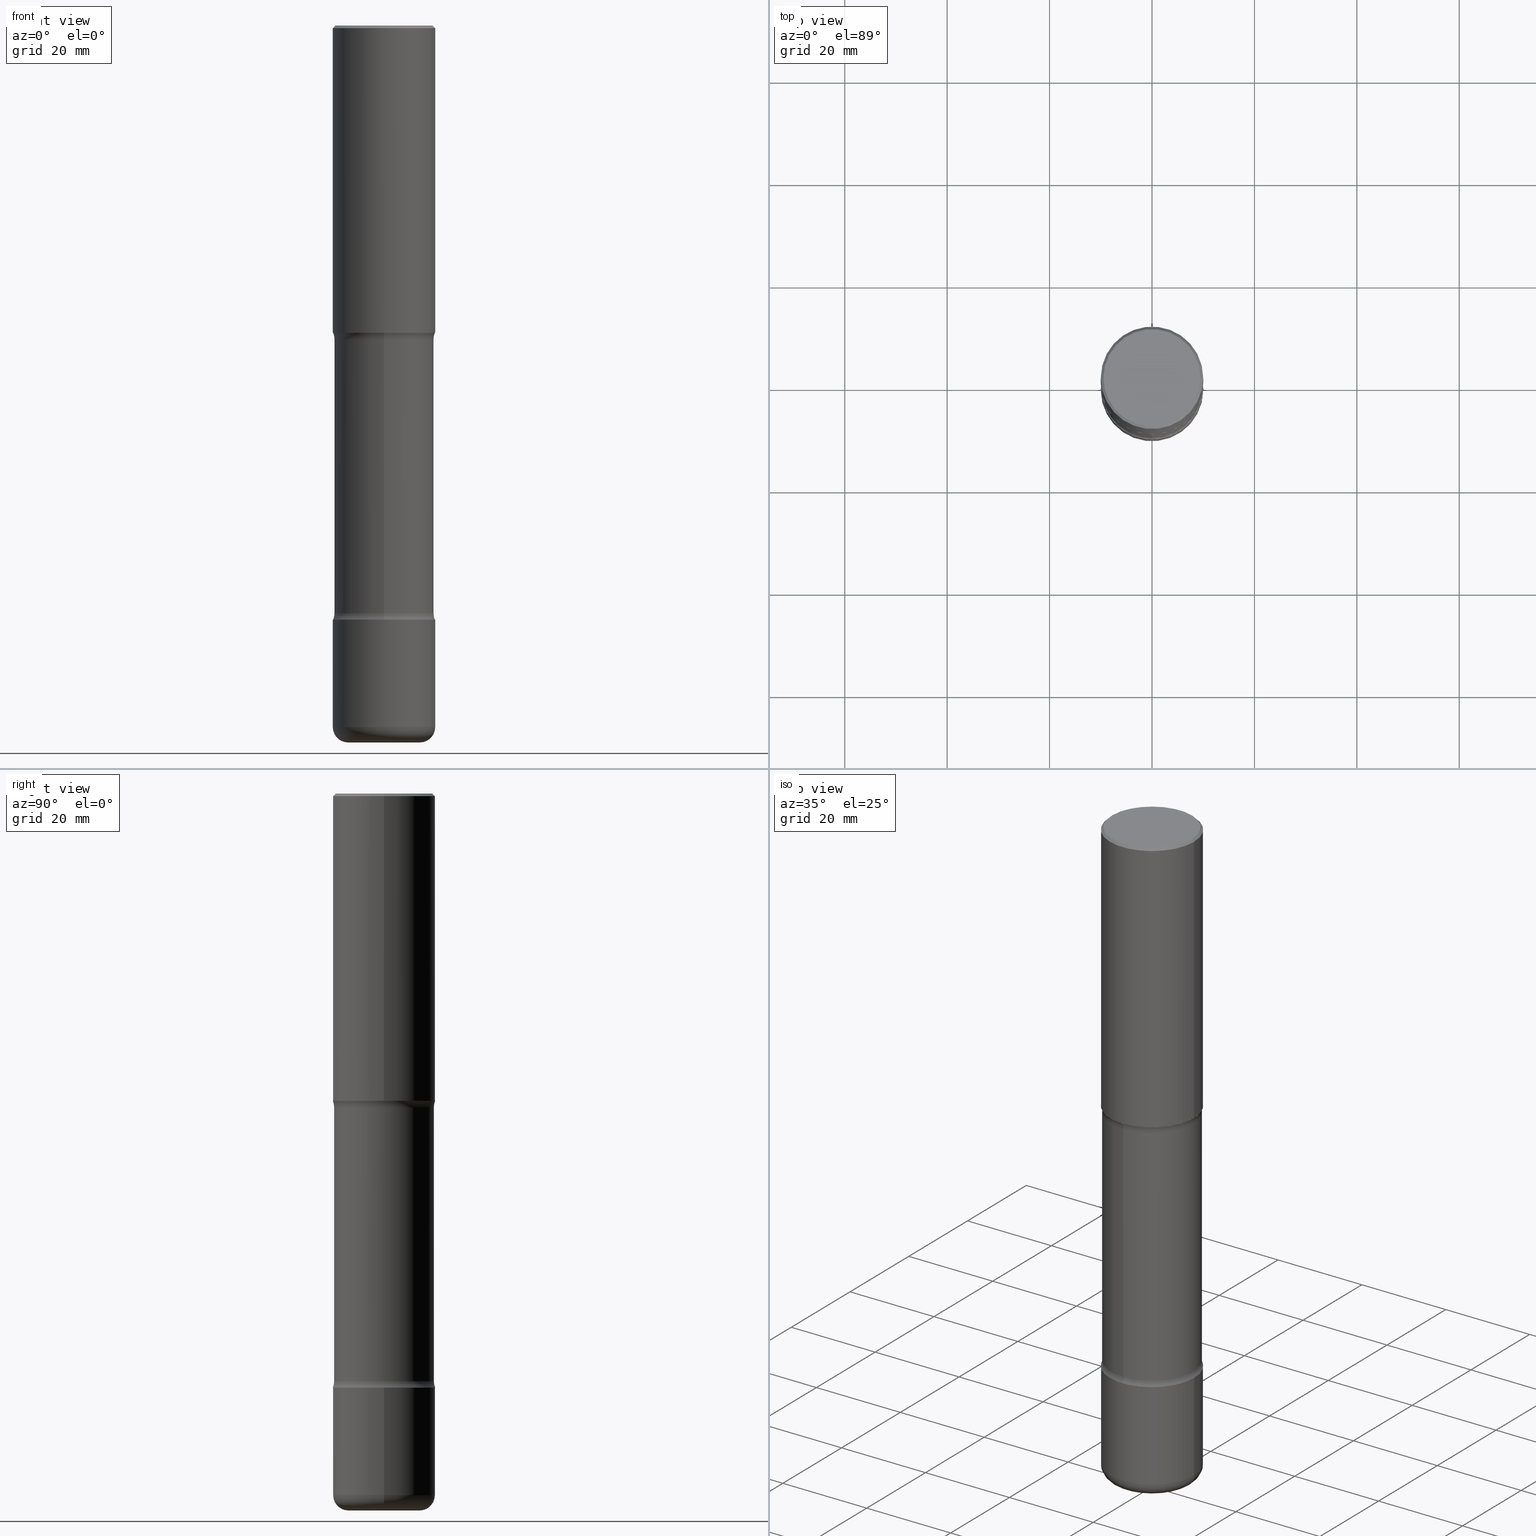
[diagram: canonical four-view strip — front | top / right | iso, engineering-drawing reading convention]
A machine part, canonical four-view strip (front | top / right | iso — engineering-drawing reading convention). The complete STEP part file that produces these views, byte-faithful:
ISO-10303-21;
HEADER;
FILE_DESCRIPTION (( 'STEP AP203' ),
    '1' );
FILE_NAME ('46941.STEP',
    '2024-03-02T06:07:45',
    ( '' ),
    ( '' ),
    'SwSTEP 2.0',
    'SolidWorks 2023',
    '' );
FILE_SCHEMA (( 'CONFIG_CONTROL_DESIGN' ));
ENDSEC;

DATA;
#1 = ORIENTED_EDGE ( 'NONE', *, *, #70, .T. ) ;
#2 = ADVANCED_BREP_SHAPE_REPRESENTATION ( '46941', ( #542, #544, #349, #174 ), #419 ) ;
#3 = CARTESIAN_POINT ( 'NONE',  ( -0.3937000000000002720, -1.361296672008554112E-15, -2.362200000000000077 ) ) ;
#4 = EDGE_CURVE ( 'NONE', #523, #367, #243, .T. ) ;
#5 = VERTEX_POINT ( 'NONE', #516 ) ;
#6 = AXIS2_PLACEMENT_3D ( 'NONE', #218, #395, #339 ) ;
#7 = AXIS2_PLACEMENT_3D ( 'NONE', #377, #38, #343 ) ;
#8 = APPROVAL_ROLE ( '' ) ;
#9 = ORIENTED_EDGE ( 'NONE', *, *, #188, .T. ) ;
#10 = DATE_AND_TIME ( #60, #474 ) ;
#11 = DIRECTION ( 'NONE',  ( 2.540811743831259279E-29, -3.354944825550891508E-15, -1.000000000000000000 ) ) ;
#12 = ORIENTED_EDGE ( 'NONE', *, *, #76, .F. ) ;
#13 = PERSON_AND_ORGANIZATION_ROLE ( 'design_owner' ) ;
#14 = CARTESIAN_POINT ( 'NONE',  ( 5.776686413970530874E-29, -8.247577218615279626E-15, -2.362200000000000077 ) ) ;
#15 = AXIS2_PLACEMENT_3D ( 'NONE', #550, #375, #24 ) ;
#16 = ADVANCED_FACE ( 'NONE', ( #344 ), #257, .F. ) ;
#17 = FACE_OUTER_BOUND ( 'NONE', #119, .T. ) ;
#18 = CARTESIAN_POINT ( 'NONE',  ( 0.000000000000000000, 0.000000000000000000, 0.000000000000000000 ) ) ;
#19 = PLANE ( 'NONE',  #547 ) ;
#20 = CC_DESIGN_DATE_AND_TIME_ASSIGNMENT ( #309, #96, ( #62 ) ) ;
#21 = AXIS2_PLACEMENT_3D ( 'NONE', #525, #493, #484 ) ;
#22 = DIRECTION ( 'NONE',  ( -2.445468806185136597E-29, 3.491481338843145583E-15, 1.000000000000000000 ) ) ;
#23 = PLANE ( 'NONE',  #147 ) ;
#24 = DIRECTION ( 'NONE',  ( 1.000000000000000000, -6.982962677686266711E-15, 0.000000000000000000 ) ) ;
#25 = CARTESIAN_POINT ( 'NONE',  ( 0.3937000000000001054, -2.749192406205084005E-15, 1.919750796630860452E-29 ) ) ;
#26 = ORIENTED_EDGE ( 'NONE', *, *, #459, .F. ) ;
#27 = ADVANCED_FACE ( 'NONE', ( #66 ), #317, .T. ) ;
#28 = CLOSED_SHELL ( 'NONE', ( #323, #234, #436, #199, #87, #128 ) ) ;
#29 = TOROIDAL_SURFACE ( 'NONE', #108, 0.5085000000000002851, 0.1250000000000000278 ) ;
#30 = CYLINDRICAL_SURFACE ( 'NONE', #499, 0.3937000000000001054 ) ;
#31 = CARTESIAN_POINT ( 'NONE',  ( 0.3736999999999999766, -2.667287895133368359E-15, 8.537024980219259100E-18 ) ) ;
#32 = CARTESIAN_POINT ( 'NONE',  ( 0.000000000000000000, 0.000000000000000000, 0.000000000000000000 ) ) ;
#33 = EDGE_LOOP ( 'NONE', ( #35, #86 ) ) ;
#34 = DIRECTION ( 'NONE',  ( 6.860497997771532351E-15, 1.000000000000000000, 0.000000000000000000 ) ) ;
#35 = ORIENTED_EDGE ( 'NONE', *, *, #56, .F. ) ;
#36 = EDGE_CURVE ( 'NONE', #458, #201, #227, .T. ) ;
#37 = APPLICATION_CONTEXT ( 'configuration controlled 3d designs of mechanical parts and assemblies' ) ;
#38 = DIRECTION ( 'NONE',  ( 7.105427357601001859E-15, 1.000000000000000000, -3.491481338843145583E-15 ) ) ;
#39 = ORIENTED_EDGE ( 'NONE', *, *, #258, .F. ) ;
#40 = CIRCLE ( 'NONE', #445, 0.3937000000000003830 ) ;
#41 =( NAMED_UNIT ( * ) SI_UNIT ( $, .STERADIAN. ) SOLID_ANGLE_UNIT ( ) );
#42 = CARTESIAN_POINT ( 'NONE',  ( 0.3937000000000000499, -2.770807688499515734E-15, -0.02000000000000008715 ) ) ;
#43 = ORIENTED_EDGE ( 'NONE', *, *, #150, .T. ) ;
#44 = LENGTH_MEASURE_WITH_UNIT ( LENGTH_MEASURE( 0.02539999999999999897 ), #80 );
#45 = CARTESIAN_POINT ( 'NONE',  ( 2.609533152651357409E-15, 0.3736999999999999766, -1.300498063835583011E-15 ) ) ;
#46 = DIRECTION ( 'NONE',  ( 1.000000000000000000, -6.860497997771530774E-15, 4.842470969663844004E-29 ) ) ;
#47 = EDGE_CURVE ( 'NONE', #389, #89, #425, .T. ) ;
#48 = DIRECTION ( 'NONE',  ( 1.000000000000000000, -6.982962677686269077E-15, 4.883557194083114022E-29 ) ) ;
#49 = EDGE_LOOP ( 'NONE', ( #398, #471, #455, #285 ) ) ;
#50 = PERSON ( 'UNSPECIFIED', 'UNSPECIFIED', 'UNSPECIFIED', ('UNSPECIFIED'), ('UNSPECIFIED'), ('UNSPECIFIED') ) ;
#51 = TOROIDAL_SURFACE ( 'NONE', #314, 0.2756000000000004557, 0.1180999999999994832 ) ;
#52 = DIRECTION ( 'NONE',  ( 0.000000000000000000, 0.000000000000000000, 1.000000000000000000 ) ) ;
#53 = DIRECTION ( 'NONE',  ( 6.982962677686265133E-15, 1.000000000000000000, -3.354944825550891508E-15 ) ) ;
#54 = VERTEX_POINT ( 'NONE', #540 ) ;
#55 = CYLINDRICAL_SURFACE ( 'NONE', #261, 0.3937000000000004385 ) ;
#56 = EDGE_CURVE ( 'NONE', #54, #203, #332, .T. ) ;
#57 = CARTESIAN_POINT ( 'NONE',  ( 0.2756000000000004557, -2.075650741128861749E-14, -5.393700000000000827 ) ) ;
#58 = CIRCLE ( 'NONE', #15, 0.3937000000000002164 ) ;
#59 = AXIS2_PLACEMENT_3D ( 'NONE', #265, #224, #103 ) ;
#60 = CALENDAR_DATE ( 2024, 2, 3 ) ;
#61 = CARTESIAN_POINT ( 'NONE',  ( 4.890937612370294178E-31, -6.982962677686321191E-17, -0.02000000000000008715 ) ) ;
#62 = PRODUCT_DEFINITION ( 'UNKNOWN', '', #185, #530 ) ;
#63 = CARTESIAN_POINT ( 'NONE',  ( 1.116821149096690103E-28, -1.594524612636276117E-14, -4.566900000000000404 ) ) ;
#64 = DIRECTION ( 'NONE',  ( 1.000000000000000000, -6.982962677686269866E-15, 0.000000000000000000 ) ) ;
#65 = TOROIDAL_SURFACE ( 'NONE', #73, 0.5085000000000001741, 0.1249999999999999584 ) ;
#66 = FACE_OUTER_BOUND ( 'NONE', #347, .T. ) ;
#67 = CARTESIAN_POINT ( 'NONE',  ( 1.104255145972444542E-28, -1.577932180213095535E-14, -4.517443352317408234 ) ) ;
#68 = DIRECTION ( 'NONE',  ( -2.445468806185136877E-29, 3.491481338843145188E-15, 1.000000000000000000 ) ) ;
#69 = VERTEX_POINT ( 'NONE', #468 ) ;
#70 = EDGE_CURVE ( 'NONE', #510, #5, #145, .T. ) ;
#71 = ORIENTED_EDGE ( 'NONE', *, *, #376, .T. ) ;
#72 = AXIS2_PLACEMENT_3D ( 'NONE', #45, #125, #521 ) ;
#73 = AXIS2_PLACEMENT_3D ( 'NONE', #140, #480, #53 ) ;
#74 = CARTESIAN_POINT ( 'NONE',  ( 0.3937000000000002164, -2.158119530352336260E-14, -5.393700000000000827 ) ) ;
#75 = EDGE_LOOP ( 'NONE', ( #526, #209 ) ) ;
#76 = EDGE_CURVE ( 'NONE', #5, #378, #320, .T. ) ;
#77 = DIRECTION ( 'NONE',  ( 1.000000000000000000, -6.982962677686269077E-15, 4.883557194083114022E-29 ) ) ;
#78 = CARTESIAN_POINT ( 'NONE',  ( -3.488563231866767784E-15, -0.5085000000000089448, -2.411656647682590915 ) ) ;
#79 = EDGE_LOOP ( 'NONE', ( #431, #26, #290, #259 ) ) ;
#80 =( LENGTH_UNIT ( ) NAMED_UNIT ( * ) SI_UNIT ( $, .METRE. ) );
#81 = FACE_OUTER_BOUND ( 'NONE', #460, .T. ) ;
#82 = VECTOR ( 'NONE', #373, 39.37007874015748143 ) ;
#83 = ORIENTED_EDGE ( 'NONE', *, *, #70, .F. ) ;
#84 = AXIS2_PLACEMENT_3D ( 'NONE', #148, #186, #231 ) ;
#85 = DIRECTION ( 'NONE',  ( -2.445468806185136877E-29, 3.491481338843145188E-15, 1.000000000000000000 ) ) ;
#86 = ORIENTED_EDGE ( 'NONE', *, *, #188, .F. ) ;
#87 = ADVANCED_FACE ( 'NONE', ( #359 ), #123, .T. ) ;
#88 = CARTESIAN_POINT ( 'NONE',  ( 1.319012509992077371E-28, -1.883200289731827938E-14, -5.393700000000000827 ) ) ;
#89 = VERTEX_POINT ( 'NONE', #454 ) ;
#90 = COORDINATED_UNIVERSAL_TIME_OFFSET ( 5, 0, .BEHIND. ) ;
#91 = FACE_OUTER_BOUND ( 'NONE', #79, .T. ) ;
#92 = ORIENTED_EDGE ( 'NONE', *, *, #177, .T. ) ;
#93 = CC_DESIGN_DATE_AND_TIME_ASSIGNMENT ( #10, #306, ( #263 ) ) ;
#94 = DIRECTION ( 'NONE',  ( -2.445468806185136597E-29, 3.491481338843145583E-15, 1.000000000000000000 ) ) ;
#95 = CARTESIAN_POINT ( 'NONE',  ( 1.319012509992077371E-28, -1.883200289731827938E-14, -5.393700000000000827 ) ) ;
#96 = DATE_TIME_ROLE ( 'creation_date' ) ;
#97 = CARTESIAN_POINT ( 'NONE',  ( 1.347893496593123646E-28, -1.924434684343564878E-14, -5.511800000000000033 ) ) ;
#98 = ADVANCED_FACE ( 'NONE', ( #410 ), #413, .T. ) ;
#99 = AXIS2_PLACEMENT_3D ( 'NONE', #217, #122, #520 ) ;
#100 = CIRCLE ( 'NONE', #236, 0.2756000000000004557 ) ;
#101 = SHAPE_DEFINITION_REPRESENTATION ( #383, #2 ) ;
#102 = ORIENTED_EDGE ( 'NONE', *, *, #522, .F. ) ;
#103 = DIRECTION ( 'NONE',  ( 1.000000000000000000, -6.982962677686269866E-15, 0.000000000000000000 ) ) ;
#104 = DIMENSIONAL_EXPONENTS ( 1.000000000000000000, 0.000000000000000000, 0.000000000000000000, 0.000000000000000000, 0.000000000000000000, 0.000000000000000000, 0.000000000000000000 ) ;
#105 = DIRECTION ( 'NONE',  ( -2.445468806185136597E-29, 3.491481338843145583E-15, 1.000000000000000000 ) ) ;
#106 = CARTESIAN_POINT ( 'NONE',  ( 5.566483839342124878E-29, -8.548599269470712439E-15, -2.362200000000000077 ) ) ;
#107 = CARTESIAN_POINT ( 'NONE',  ( 0.000000000000000000, 0.000000000000000000, 0.000000000000000000 ) ) ;
#108 = AXIS2_PLACEMENT_3D ( 'NONE', #151, #501, #416 ) ;
#109 = ORGANIZATION ( 'UNSPECIFIED', 'UNSPECIFIED', '' ) ;
#110 = EDGE_CURVE ( 'NONE', #214, #378, #517, .T. ) ;
#111 = CARTESIAN_POINT ( 'NONE',  ( 5.706867177328101734E-29, -8.693438980447217573E-15, -2.411656647682592691 ) ) ;
#112 = VERTEX_POINT ( 'NONE', #74 ) ;
#113 = ORIENTED_EDGE ( 'NONE', *, *, #333, .F. ) ;
#114 = DIRECTION ( 'NONE',  ( 6.982962677686265922E-15, 1.000000000000000000, -3.469453890861391234E-15 ) ) ;
#115 = ORIENTED_EDGE ( 'NONE', *, *, #533, .F. ) ;
#116 = CC_DESIGN_PERSON_AND_ORGANIZATION_ASSIGNMENT ( #230, #360, ( #62 ) ) ;
#117 = PLANE ( 'NONE',  #280 ) ;
#118 = ORIENTED_EDGE ( 'NONE', *, *, #56, .T. ) ;
#119 = EDGE_LOOP ( 'NONE', ( #382, #424 ) ) ;
#120 = DIRECTION ( 'NONE',  ( 1.000000000000000000, -6.982962677686265922E-15, 0.000000000000000000 ) ) ;
#121 = ORIENTED_EDGE ( 'NONE', *, *, #36, .F. ) ;
#122 = DIRECTION ( 'NONE',  ( 2.445468806185136597E-29, -3.491481338843145583E-15, -1.000000000000000000 ) ) ;
#123 = CYLINDRICAL_SURFACE ( 'NONE', #184, 0.3937000000000004385 ) ;
#124 = AXIS2_PLACEMENT_3D ( 'NONE', #106, #420, #329 ) ;
#125 = DIRECTION ( 'NONE',  ( 2.438088387897960049E-29, -3.491481338843145188E-15, -1.000000000000000000 ) ) ;
#126 = EDGE_CURVE ( 'NONE', #112, #89, #552, .T. ) ;
#127 =( NAMED_UNIT ( * ) PLANE_ANGLE_UNIT ( ) SI_UNIT ( $, .RADIAN. ) );
#128 = ADVANCED_FACE ( 'NONE', ( #149 ), #117, .F. ) ;
#129 = FACE_OUTER_BOUND ( 'NONE', #180, .T. ) ;
#130 = VERTEX_POINT ( 'NONE', #246 ) ;
#131 = COORDINATED_UNIVERSAL_TIME_OFFSET ( 5, 0, .BEHIND. ) ;
#132 = ORIENTED_EDGE ( 'NONE', *, *, #229, .F. ) ;
#133 = ADVANCED_FACE ( 'NONE', ( #156 ), #30, .T. ) ;
#134 = APPROVAL_STATUS ( 'not_yet_approved' ) ;
#135 = DIRECTION ( 'NONE',  ( -2.445468806185136597E-29, 3.491481338843145583E-15, 1.000000000000000000 ) ) ;
#136 = AXIS2_PLACEMENT_3D ( 'NONE', #327, #503, #114 ) ;
#137 = CIRCLE ( 'NONE', #299, 0.3937000000000003830 ) ;
#138 = DIRECTION ( 'NONE',  ( -2.445468806185136597E-29, 3.491481338843145583E-15, 1.000000000000000000 ) ) ;
#139 = APPROVAL_STATUS ( 'not_yet_approved' ) ;
#140 = CARTESIAN_POINT ( 'NONE',  ( 1.104726680180063437E-28, -1.577256916389725054E-14, -4.517443352317408234 ) ) ;
#141 = APPROVAL_DATE_TIME ( #269, #479 ) ;
#142 = VERTEX_POINT ( 'NONE', #453 ) ;
#143 = DIRECTION ( 'NONE',  ( -2.445468806185136597E-29, 3.491481338843145583E-15, 1.000000000000000000 ) ) ;
#144 = EDGE_CURVE ( 'NONE', #130, #256, #154, .T. ) ;
#145 = CIRCLE ( 'NONE', #207, 0.3937000000000003830 ) ;
#146 = VECTOR ( 'NONE', #515, 39.37007874015748143 ) ;
#147 = AXIS2_PLACEMENT_3D ( 'NONE', #456, #415, #198 ) ;
#148 = CARTESIAN_POINT ( 'NONE',  ( 4.890937612370294178E-31, -6.982962677686321191E-17, -0.02000000000000008715 ) ) ;
#149 = FACE_OUTER_BOUND ( 'NONE', #288, .T. ) ;
#150 = EDGE_CURVE ( 'NONE', #502, #130, #58, .T. ) ;
#151 = CARTESIAN_POINT ( 'NONE',  ( 5.706867177328101734E-29, -8.693438980447217573E-15, -2.411656647682592691 ) ) ;
#152 = ORIENTED_EDGE ( 'NONE', *, *, #291, .T. ) ;
#153 = VECTOR ( 'NONE', #294, 39.37007874015748143 ) ;
#154 = LINE ( 'NONE', #25, #253 ) ;
#155 = EDGE_LOOP ( 'NONE', ( #102, #43, #164, #113 ) ) ;
#156 = FACE_OUTER_BOUND ( 'NONE', #155, .T. ) ;
#157 = EDGE_LOOP ( 'NONE', ( #132, #312, #212, #370 ) ) ;
#158 = ADVANCED_FACE ( 'NONE', ( #159 ), #527, .F. ) ;
#159 = FACE_OUTER_BOUND ( 'NONE', #166, .T. ) ;
#160 = ORIENTED_EDGE ( 'NONE', *, *, #399, .T. ) ;
#161 = AXIS2_PLACEMENT_3D ( 'NONE', #422, #464, #193 ) ;
#162 = VECTOR ( 'NONE', #85, 39.37007874015748143 ) ;
#163 = CARTESIAN_POINT ( 'NONE',  ( -0.3937000000000000499, 2.679362779428219918E-15, -0.02000000000000008715 ) ) ;
#164 = ORIENTED_EDGE ( 'NONE', *, *, #144, .T. ) ;
#165 = DIRECTION ( 'NONE',  ( 1.000000000000000000, -6.982962677686269077E-15, 0.000000000000000000 ) ) ;
#166 = EDGE_LOOP ( 'NONE', ( #335, #295, #160, #118 ) ) ;
#167 = CARTESIAN_POINT ( 'NONE',  ( 1.347893496593123646E-28, -1.924434684343564878E-14, -5.511800000000000033 ) ) ;
#168 = ADVANCED_FACE ( 'NONE', ( #366 ), #29, .F. ) ;
#169 = DIRECTION ( 'NONE',  ( 6.982962677686265133E-15, 1.000000000000000000, -3.354944825550891508E-15 ) ) ;
#170 = VERTEX_POINT ( 'NONE', #196 ) ;
#171 = DIRECTION ( 'NONE',  ( 6.860497997771532351E-15, 1.000000000000000000, 0.000000000000000000 ) ) ;
#172 = AXIS2_PLACEMENT_3D ( 'NONE', #509, #513, #169 ) ;
#173 = EDGE_LOOP ( 'NONE', ( #292, #553, #176, #467 ) ) ;
#174 = AXIS2_PLACEMENT_3D ( 'NONE', #18, #52, #396 ) ;
#175 = PERSON_AND_ORGANIZATION_ROLE ( 'classification_officer' ) ;
#176 = ORIENTED_EDGE ( 'NONE', *, *, #430, .T. ) ;
#177 = EDGE_CURVE ( 'NONE', #201, #250, #324, .T. ) ;
#178 = COORDINATED_UNIVERSAL_TIME_OFFSET ( 5, 0, .BEHIND. ) ;
#179 = CARTESIAN_POINT ( 'NONE',  ( 0.000000000000000000, 0.000000000000000000, 0.000000000000000000 ) ) ;
#180 = EDGE_LOOP ( 'NONE', ( #560, #1 ) ) ;
#181 = PERSON_AND_ORGANIZATION ( #50, #109 ) ;
#182 = UNCERTAINTY_MEASURE_WITH_UNIT (LENGTH_MEASURE( 1.000000000000000082E-05 ), #519, 'distance_accuracy_value', 'NONE');
#183 = DIRECTION ( 'NONE',  ( 1.000000000000000000, -6.982962677686265922E-15, 0.000000000000000000 ) ) ;
#184 = AXIS2_PLACEMENT_3D ( 'NONE', #107, #22, #202 ) ;
#185 = PRODUCT_DEFINITION_FORMATION_WITH_SPECIFIED_SOURCE ( 'ANY', '', #296, .NOT_KNOWN. ) ;
#186 = DIRECTION ( 'NONE',  ( 2.445468806185136597E-29, -3.491481338843145583E-15, -1.000000000000000000 ) ) ;
#187 = CALENDAR_DATE ( 2024, 2, 3 ) ;
#188 = EDGE_CURVE ( 'NONE', #203, #54, #482, .T. ) ;
#189 = DIRECTION ( 'NONE',  ( 1.000000000000000000, -6.982962677686261977E-15, 0.000000000000000000 ) ) ;
#190 = FACE_OUTER_BOUND ( 'NONE', #491, .T. ) ;
#191 = CIRCLE ( 'NONE', #244, 0.1250000000000000278 ) ;
#192 = AXIS2_PLACEMENT_3D ( 'NONE', #363, #358, #275 ) ;
#193 = DIRECTION ( 'NONE',  ( 6.982962677686265133E-15, 1.000000000000000000, -2.849385130288669478E-15 ) ) ;
#194 = CC_DESIGN_PERSON_AND_ORGANIZATION_ASSIGNMENT ( #442, #175, ( #263 ) ) ;
#195 = DIRECTION ( 'NONE',  ( -2.445468806185136877E-29, 3.491481338843145188E-15, 1.000000000000000000 ) ) ;
#196 = CARTESIAN_POINT ( 'NONE',  ( -0.3937000000000002164, -1.603459614663076223E-14, -5.393700000000000827 ) ) ;
#197 = APPROVAL_PERSON_ORGANIZATION ( #490, #557, #220 ) ;
#198 = DIRECTION ( 'NONE',  ( 1.000000000000000000, -6.982962677686265922E-15, 4.876176775795935793E-29 ) ) ;
#199 = ADVANCED_FACE ( 'NONE', ( #381 ), #51, .T. ) ;
#200 = DIRECTION ( 'NONE',  ( 1.000000000000000000, -6.982962677686266711E-15, 4.876176775795935793E-29 ) ) ;
#201 = VERTEX_POINT ( 'NONE', #428 ) ;
#202 = DIRECTION ( 'NONE',  ( 1.000000000000000000, -6.982962677686266711E-15, 4.876176775795935793E-29 ) ) ;
#203 = VERTEX_POINT ( 'NONE', #249 ) ;
#204 = CARTESIAN_POINT ( 'NONE',  ( -3.488563231866713353E-15, -0.5085000000000159392, -4.517443352317406458 ) ) ;
#205 = LINE ( 'NONE', #470, #146 ) ;
#206 = DIRECTION ( 'NONE',  ( -1.000000000000000000, 6.982962677686265922E-15, -4.883557194083112901E-29 ) ) ;
#207 = AXIS2_PLACEMENT_3D ( 'NONE', #63, #449, #278 ) ;
#208 = AXIS2_PLACEMENT_3D ( 'NONE', #57, #226, #403 ) ;
#209 = ORIENTED_EDGE ( 'NONE', *, *, #150, .F. ) ;
#210 = EDGE_CURVE ( 'NONE', #142, #203, #191, .T. ) ;
#211 = CARTESIAN_POINT ( 'NONE',  ( -2.631000982145247058E-15, -0.3835000000000192699, -5.511799999999999145 ) ) ;
#212 = ORIENTED_EDGE ( 'NONE', *, *, #126, .T. ) ;
#213 = FACE_OUTER_BOUND ( 'NONE', #374, .T. ) ;
#214 = VERTEX_POINT ( 'NONE', #346 ) ;
#215 = CIRCLE ( 'NONE', #537, 0.3937000000000004940 ) ;
#216 = EDGE_CURVE ( 'NONE', #69, #378, #205, .T. ) ;
#217 = CARTESIAN_POINT ( 'NONE',  ( 4.890937612370294178E-31, -6.982962677686321191E-17, -0.02000000000000008715 ) ) ;
#218 = CARTESIAN_POINT ( 'NONE',  ( 1.347893496593123646E-28, -1.924434684343564878E-14, -5.511800000000000033 ) ) ;
#219 = VECTOR ( 'NONE', #427, 39.37007874015748143 ) ;
#220 = APPROVAL_ROLE ( '' ) ;
#221 = FACE_OUTER_BOUND ( 'NONE', #49, .T. ) ;
#222 = EDGE_LOOP ( 'NONE', ( #331, #478 ) ) ;
#223 = APPROVAL_DATE_TIME ( #405, #557 ) ;
#224 = DIRECTION ( 'NONE',  ( -2.445468806185136597E-29, 3.491481338843145583E-15, 1.000000000000000000 ) ) ;
#225 = APPROVAL_STATUS ( 'not_yet_approved' ) ;
#226 = DIRECTION ( 'NONE',  ( -6.982962677686266711E-15, -1.000000000000000000, 3.491481338843145583E-15 ) ) ;
#227 = CIRCLE ( 'NONE', #450, 0.3736999999999999766 ) ;
#228 = LOCAL_TIME ( 1, 7, 45.00000000000000000, #178 ) ;
#229 = EDGE_CURVE ( 'NONE', #170, #389, #337, .T. ) ;
#230 = PERSON_AND_ORGANIZATION ( #50, #109 ) ;
#231 = DIRECTION ( 'NONE',  ( -1.000000000000000000, 6.982962677686265922E-15, 0.000000000000000000 ) ) ;
#232 = APPLICATION_PROTOCOL_DEFINITION ( 'international standard', 'config_control_design', 1994, #330 ) ;
#233 = CARTESIAN_POINT ( 'NONE',  ( 0.2756000000000004557, -2.116885135740598689E-14, -5.511800000000000033 ) ) ;
#234 = ADVANCED_FACE ( 'NONE', ( #81 ), #473, .T. ) ;
#235 = CIRCLE ( 'NONE', #555, 0.3937000000000000499 ) ;
#236 = AXIS2_PLACEMENT_3D ( 'NONE', #167, #336, #165 ) ;
#237 = DIRECTION ( 'NONE',  ( -1.000000000000000000, 6.982962677686265922E-15, -4.876176775795935793E-29 ) ) ;
#238 = DIRECTION ( 'NONE',  ( 6.982962677686265133E-15, 1.000000000000000000, -2.849385130288669478E-15 ) ) ;
#239 = DIRECTION ( 'NONE',  ( 2.438088387897960049E-29, -3.491481338843145188E-15, -1.000000000000000000 ) ) ;
#240 = ORIENTED_EDGE ( 'NONE', *, *, #369, .F. ) ;
#241 = CARTESIAN_POINT ( 'NONE',  ( 1.116821149096690103E-28, -1.594524612636276117E-14, -4.566900000000000404 ) ) ;
#242 = CARTESIAN_POINT ( 'NONE',  ( -0.3937000000000000499, 2.679362779428219918E-15, -0.02000000000000008715 ) ) ;
#243 = CIRCLE ( 'NONE', #6, 0.2756000000000004557 ) ;
#244 = AXIS2_PLACEMENT_3D ( 'NONE', #78, #251, #34 ) ;
#245 = EDGE_CURVE ( 'NONE', #523, #170, #297, .T. ) ;
#246 = CARTESIAN_POINT ( 'NONE',  ( 0.3937000000000002164, -1.099676962482036442E-14, -2.362200000000000077 ) ) ;
#247 = ORIENTED_EDGE ( 'NONE', *, *, #488, .F. ) ;
#248 = LINE ( 'NONE', #469, #409 ) ;
#249 = CARTESIAN_POINT ( 'NONE',  ( -2.700978061722599187E-15, -0.3937000000000090982, -2.362199999999998745 ) ) ;
#250 = VERTEX_POINT ( 'NONE', #163 ) ;
#251 = DIRECTION ( 'NONE',  ( 1.000000000000000000, -6.860497997771530774E-15, 4.842470969663844004E-29 ) ) ;
#252 = ORIENTED_EDGE ( 'NONE', *, *, #245, .T. ) ;
#253 = VECTOR ( 'NONE', #195, 39.37007874015748143 ) ;
#254 = CC_DESIGN_APPROVAL ( #479, ( #185 ) ) ;
#255 = CARTESIAN_POINT ( 'NONE',  ( 1.319012509992077371E-28, -1.883200289731827938E-14, -5.393700000000000827 ) ) ;
#256 = VERTEX_POINT ( 'NONE', #42 ) ;
#257 = PLANE ( 'NONE',  #72 ) ;
#258 = EDGE_CURVE ( 'NONE', #378, #214, #271, .T. ) ;
#259 = ORIENTED_EDGE ( 'NONE', *, *, #258, .T. ) ;
#260 = APPROVAL_DATE_TIME ( #353, #421 ) ;
#261 = AXIS2_PLACEMENT_3D ( 'NONE', #179, #313, #444 ) ;
#262 = CARTESIAN_POINT ( 'NONE',  ( 5.692143870584579365E-29, -8.714523593702518262E-15, -2.411656647682592247 ) ) ;
#263 = SECURITY_CLASSIFICATION ( '', '', #524 ) ;
#264 = ORIENTED_EDGE ( 'NONE', *, *, #144, .F. ) ;
#265 = CARTESIAN_POINT ( 'NONE',  ( 1.319012509992077371E-28, -1.883200289731827938E-14, -5.393700000000000827 ) ) ;
#266 = APPROVAL_ROLE ( '' ) ;
#267 = DIRECTION ( 'NONE',  ( -2.445468806185136597E-29, 3.491481338843145583E-15, 1.000000000000000000 ) ) ;
#268 = ADVANCED_FACE ( 'NONE', ( #213 ), #341, .F. ) ;
#269 = DATE_AND_TIME ( #348, #321 ) ;
#270 = DIRECTION ( 'NONE',  ( 1.000000000000000000, -6.982962677686266711E-15, 4.876212485538975679E-29 ) ) ;
#271 = CIRCLE ( 'NONE', #443, 0.3835000000000001741 ) ;
#272 = CIRCLE ( 'NONE', #192, 0.1250000000000000278 ) ;
#273 = PERSON_AND_ORGANIZATION_ROLE ( 'design_supplier' ) ;
#274 = ORIENTED_EDGE ( 'NONE', *, *, #316, .T. ) ;
#275 = DIRECTION ( 'NONE',  ( -6.982962677686265133E-15, -1.000000000000000000, 0.000000000000000000 ) ) ;
#276 = DIRECTION ( 'NONE',  ( 1.000000000000000000, -6.982962677686261977E-15, 0.000000000000000000 ) ) ;
#277 = ADVANCED_FACE ( 'NONE', ( #559 ), #391, .T. ) ;
#278 = DIRECTION ( 'NONE',  ( 6.982962677686265133E-15, 1.000000000000000000, -2.775563112689113934E-15 ) ) ;
#279 = DIRECTION ( 'NONE',  ( -2.445468806185136597E-29, 3.491481338843145583E-15, 1.000000000000000000 ) ) ;
#280 = AXIS2_PLACEMENT_3D ( 'NONE', #318, #284, #287 ) ;
#281 = DIRECTION ( 'NONE',  ( -2.445468806185136597E-29, 3.491481338843145583E-15, 1.000000000000000000 ) ) ;
#282 = CARTESIAN_POINT ( 'NONE',  ( 0.3937000000000004385, -2.749192406205086372E-15, 1.919750796630862133E-29 ) ) ;
#283 = ORIENTED_EDGE ( 'NONE', *, *, #177, .F. ) ;
#284 = DIRECTION ( 'NONE',  ( 2.438088387897960049E-29, -3.491481338843145188E-15, -1.000000000000000000 ) ) ;
#285 = ORIENTED_EDGE ( 'NONE', *, *, #126, .F. ) ;
#286 = ADVANCED_FACE ( 'NONE', ( #129 ), #439, .F. ) ;
#287 = DIRECTION ( 'NONE',  ( -1.000000000000000000, 6.982962677686265922E-15, -4.876176775795935793E-29 ) ) ;
#288 = EDGE_LOOP ( 'NONE', ( #71, #514 ) ) ;
#289 = CIRCLE ( 'NONE', #364, 0.3835000000000002296 ) ;
#290 = ORIENTED_EDGE ( 'NONE', *, *, #76, .T. ) ;
#291 = EDGE_CURVE ( 'NONE', #130, #502, #418, .T. ) ;
#292 = ORIENTED_EDGE ( 'NONE', *, *, #245, .F. ) ;
#293 = DIRECTION ( 'NONE',  ( 2.540811743831259279E-29, -3.354944825550891508E-15, -1.000000000000000000 ) ) ;
#294 = DIRECTION ( 'NONE',  ( -2.445468806185136877E-29, 3.491481338843145188E-15, 1.000000000000000000 ) ) ;
#295 = ORIENTED_EDGE ( 'NONE', *, *, #316, .F. ) ;
#296 = PRODUCT ( '46941', '46941', '', ( #532 ) ) ;
#297 = CIRCLE ( 'NONE', #7, 0.1180999999999994832 ) ;
#298 = LINE ( 'NONE', #463, #162 ) ;
#299 = AXIS2_PLACEMENT_3D ( 'NONE', #558, #293, #380 ) ;
#300 = ORIENTED_EDGE ( 'NONE', *, *, #549, .F. ) ;
#301 = CARTESIAN_POINT ( 'NONE',  ( -0.2756000000000004557, -1.666034360515578958E-14, -5.511800000000000033 ) ) ;
#302 = ORIENTED_EDGE ( 'NONE', *, *, #326, .T. ) ;
#303 = ORIENTED_EDGE ( 'NONE', *, *, #488, .T. ) ;
#304 = CALENDAR_DATE ( 2024, 2, 3 ) ;
#305 = DIRECTION ( 'NONE',  ( 1.000000000000000000, -6.982962677686266711E-15, 0.000000000000000000 ) ) ;
#306 = DATE_TIME_ROLE ( 'classification_date' ) ;
#307 = ADVANCED_FACE ( 'NONE', ( #91 ), #65, .F. ) ;
#308 = DIRECTION ( 'NONE',  ( 6.982962677686265922E-15, 1.000000000000000000, -3.354944825550891508E-15 ) ) ;
#309 = DATE_AND_TIME ( #535, #556 ) ;
#310 = CARTESIAN_POINT ( 'NONE',  ( 2.677966186892794339E-15, 0.3834999999999843534, -4.517443352317409122 ) ) ;
#311 = PERSON_AND_ORGANIZATION ( #50, #109 ) ;
#312 = ORIENTED_EDGE ( 'NONE', *, *, #315, .T. ) ;
#313 = DIRECTION ( 'NONE',  ( -2.445468806185136597E-29, 3.491481338843145583E-15, 1.000000000000000000 ) ) ;
#314 = AXIS2_PLACEMENT_3D ( 'NONE', #88, #466, #77 ) ;
#315 = EDGE_CURVE ( 'NONE', #170, #112, #215, .T. ) ;
#316 = EDGE_CURVE ( 'NONE', #69, #142, #289, .T. ) ;
#317 = CYLINDRICAL_SURFACE ( 'NONE', #402, 0.3835000000000001741 ) ;
#318 = CARTESIAN_POINT ( 'NONE',  ( 1.116821149096690103E-28, -1.594524612636276117E-14, -4.566900000000000404 ) ) ;
#319 = ORIENTED_EDGE ( 'NONE', *, *, #472, .T. ) ;
#320 = CIRCLE ( 'NONE', #408, 0.1249999999999999584 ) ;
#321 = LOCAL_TIME ( 1, 7, 45.00000000000000000, #131 ) ;
#322 = DIRECTION ( 'NONE',  ( 6.982962677686265133E-15, 1.000000000000000000, -2.849385130288669478E-15 ) ) ;
#323 = ADVANCED_FACE ( 'NONE', ( #221 ), #55, .T. ) ;
#324 = LINE ( 'NONE', #242, #82 ) ;
#325 = EDGE_LOOP ( 'NONE', ( #300, #302, #423, #414 ) ) ;
#326 = EDGE_CURVE ( 'NONE', #142, #69, #506, .T. ) ;
#327 = CARTESIAN_POINT ( 'NONE',  ( 5.566483839342124878E-29, -8.548599269470712439E-15, -2.362200000000000077 ) ) ;
#328 = ORIENTED_EDGE ( 'NONE', *, *, #399, .F. ) ;
#329 = DIRECTION ( 'NONE',  ( 6.982962677686265922E-15, 1.000000000000000000, -3.469453890861391234E-15 ) ) ;
#330 = APPLICATION_CONTEXT ( 'configuration controlled 3d designs of mechanical parts and assemblies' ) ;
#331 = ORIENTED_EDGE ( 'NONE', *, *, #369, .T. ) ;
#332 = CIRCLE ( 'NONE', #124, 0.3937000000000005495 ) ;
#333 = EDGE_CURVE ( 'NONE', #250, #256, #235, .T. ) ;
#334 = CARTESIAN_POINT ( 'NONE',  ( 1.104255145972444542E-28, -1.577932180213095535E-14, -4.517443352317408234 ) ) ;
#335 = ORIENTED_EDGE ( 'NONE', *, *, #210, .F. ) ;
#336 = DIRECTION ( 'NONE',  ( -2.445468806185136597E-29, 3.491481338843145583E-15, 1.000000000000000000 ) ) ;
#337 = LINE ( 'NONE', #394, #153 ) ;
#338 = ORIENTED_EDGE ( 'NONE', *, *, #352, .F. ) ;
#339 = DIRECTION ( 'NONE',  ( 1.000000000000000000, -6.982962677686269077E-15, 0.000000000000000000 ) ) ;
#340 = CLOSED_SHELL ( 'NONE', ( #27, #268, #168, #158, #388, #286, #307, #98 ) ) ;
#341 = TOROIDAL_SURFACE ( 'NONE', #172, 0.5085000000000001741, 0.1249999999999999584 ) ;
#342 = AXIS2_PLACEMENT_3D ( 'NONE', #534, #138, #448 ) ;
#343 = DIRECTION ( 'NONE',  ( -1.000000000000000000, 7.105427357601001859E-15, 0.000000000000000000 ) ) ;
#344 = FACE_OUTER_BOUND ( 'NONE', #222, .T. ) ;
#345 = ADVANCED_FACE ( 'NONE', ( #538 ), #462, .T. ) ;
#346 = CARTESIAN_POINT ( 'NONE',  ( -2.665989521933907346E-15, -0.3835000000000159392, -4.517443352317407346 ) ) ;
#347 = EDGE_LOOP ( 'NONE', ( #274, #477, #39, #432 ) ) ;
#348 = CALENDAR_DATE ( 2024, 2, 3 ) ;
#349 = MANIFOLD_SOLID_BREP ( 'Body-Move/Copy2[4]', #340 ) ;
#350 = DIRECTION ( 'NONE',  ( 6.982962677686265133E-15, 1.000000000000000000, -3.561731412860836552E-15 ) ) ;
#351 = ORIENTED_EDGE ( 'NONE', *, *, #326, .F. ) ;
#352 = EDGE_CURVE ( 'NONE', #112, #170, #461, .T. ) ;
#353 = DATE_AND_TIME ( #187, #404 ) ;
#354 = AXIS2_PLACEMENT_3D ( 'NONE', #111, #457, #543 ) ;
#355 = DIRECTION ( 'NONE',  ( 2.540811743831258719E-29, -3.354944825550891508E-15, -1.000000000000000000 ) ) ;
#356 = CIRCLE ( 'NONE', #365, 0.1249999999999999584 ) ;
#357 = COORDINATED_UNIVERSAL_TIME_OFFSET ( 5, 0, .BEHIND. ) ;
#358 = DIRECTION ( 'NONE',  ( -1.000000000000000000, 6.982962677686265922E-15, -4.883557194083112901E-29 ) ) ;
#359 = FACE_OUTER_BOUND ( 'NONE', #157, .T. ) ;
#360 = PERSON_AND_ORGANIZATION_ROLE ( 'creator' ) ;
#361 = FACE_OUTER_BOUND ( 'NONE', #33, .T. ) ;
#362 = CC_DESIGN_PERSON_AND_ORGANIZATION_ASSIGNMENT ( #529, #13, ( #296 ) ) ;
#363 = CARTESIAN_POINT ( 'NONE',  ( 3.550836521603525613E-15, 0.5084999999999916254, -2.411656647682594468 ) ) ;
#364 = AXIS2_PLACEMENT_3D ( 'NONE', #262, #11, #350 ) ;
#365 = AXIS2_PLACEMENT_3D ( 'NONE', #204, #46, #171 ) ;
#366 = FACE_OUTER_BOUND ( 'NONE', #481, .T. ) ;
#367 = VERTEX_POINT ( 'NONE', #233 ) ;
#368 = DIRECTION ( 'NONE',  ( 2.540811743831259279E-29, -3.354944825550891508E-15, -1.000000000000000000 ) ) ;
#369 = EDGE_CURVE ( 'NONE', #201, #458, #500, .T. ) ;
#370 = ORIENTED_EDGE ( 'NONE', *, *, #47, .F. ) ;
#371 = AXIS2_PLACEMENT_3D ( 'NONE', #255, #554, #48 ) ;
#372 = APPROVAL_PERSON_ORGANIZATION ( #486, #479, #8 ) ;
#373 = DIRECTION ( 'NONE',  ( -0.7071067811865469066, 2.468850131082250355E-15, -0.7071067811865481278 ) ) ;
#374 = EDGE_LOOP ( 'NONE', ( #83, #507, #438, #12 ) ) ;
#375 = DIRECTION ( 'NONE',  ( -2.445468806185136597E-29, 3.491481338843145583E-15, 1.000000000000000000 ) ) ;
#376 = EDGE_CURVE ( 'NONE', #89, #389, #40, .T. ) ;
#377 = CARTESIAN_POINT ( 'NONE',  ( -0.2756000000000004557, -1.687374711756343806E-14, -5.393700000000000827 ) ) ;
#378 = VERTEX_POINT ( 'NONE', #310 ) ;
#379 = VECTOR ( 'NONE', #68, 39.37007874015748143 ) ;
#380 = DIRECTION ( 'NONE',  ( 6.982962677686265133E-15, 1.000000000000000000, -2.775563112689113934E-15 ) ) ;
#381 = FACE_OUTER_BOUND ( 'NONE', #173, .T. ) ;
#382 = ORIENTED_EDGE ( 'NONE', *, *, #472, .F. ) ;
#383 = PRODUCT_DEFINITION_SHAPE ( 'NONE', 'NONE',  #62 ) ;
#384 = DIRECTION ( 'NONE',  ( 0.7071067811865469066, -7.319954787623254468E-15, -0.7071067811865481278 ) ) ;
#385 = DIRECTION ( 'NONE',  ( 2.540811743831259279E-29, -3.354944825550891508E-15, -1.000000000000000000 ) ) ;
#386 = ORIENTED_EDGE ( 'NONE', *, *, #210, .T. ) ;
#387 = DIRECTION ( 'NONE',  ( -6.982962677686265133E-15, -1.000000000000000000, 0.000000000000000000 ) ) ;
#388 = ADVANCED_FACE ( 'NONE', ( #361 ), #19, .F. ) ;
#389 = VERTEX_POINT ( 'NONE', #531 ) ;
#390 = AXIS2_PLACEMENT_3D ( 'NONE', #241, #281, #276 ) ;
#391 = CONICAL_SURFACE ( 'NONE', #99, 0.3937000000000000499, 0.7853981633974473908 ) ;
#392 = LINE ( 'NONE', #211, #219 ) ;
#393 = AXIS2_PLACEMENT_3D ( 'NONE', #97, #239, #237 ) ;
#394 = CARTESIAN_POINT ( 'NONE',  ( -0.3937000000000004385, 2.797406750687517547E-15, -1.936584745033358417E-29 ) ) ;
#395 = DIRECTION ( 'NONE',  ( -2.445468806185136597E-29, 3.491481338843145583E-15, 1.000000000000000000 ) ) ;
#396 = DIRECTION ( 'NONE',  ( 1.000000000000000000, 0.000000000000000000, 0.000000000000000000 ) ) ;
#397 = CARTESIAN_POINT ( 'NONE',  ( 5.776686413970530874E-29, -8.247577218615279626E-15, -2.362200000000000077 ) ) ;
#398 = ORIENTED_EDGE ( 'NONE', *, *, #352, .T. ) ;
#399 = EDGE_CURVE ( 'NONE', #69, #54, #272, .T. ) ;
#400 = CARTESIAN_POINT ( 'NONE',  ( 1.116821149096690103E-28, -1.594524612636276117E-14, -4.566900000000000404 ) ) ;
#401 = COORDINATED_UNIVERSAL_TIME_OFFSET ( 5, 0, .BEHIND. ) ;
#402 = AXIS2_PLACEMENT_3D ( 'NONE', #412, #368, #322 ) ;
#403 = DIRECTION ( 'NONE',  ( 1.000000000000000000, -6.982962677686270655E-15, 0.000000000000000000 ) ) ;
#404 = LOCAL_TIME ( 1, 7, 45.00000000000000000, #90 ) ;
#405 = DATE_AND_TIME ( #304, #228 ) ;
#406 = CARTESIAN_POINT ( 'NONE',  ( 1.116821149096690103E-28, -1.594524612636276117E-14, -4.566900000000000404 ) ) ;
#407 = DIRECTION ( 'NONE',  ( -2.445468806185136597E-29, 3.491481338843145583E-15, 1.000000000000000000 ) ) ;
#408 = AXIS2_PLACEMENT_3D ( 'NONE', #497, #206, #387 ) ;
#409 = VECTOR ( 'NONE', #384, 39.37007874015748143 ) ;
#410 = FACE_OUTER_BOUND ( 'NONE', #325, .T. ) ;
#411 = ADVANCED_FACE ( 'NONE', ( #190 ), #441, .T. ) ;
#412 = CARTESIAN_POINT ( 'NONE',  ( 1.356902450771305887E-28, -1.911533349202580181E-14, -5.511800000000000033 ) ) ;
#413 = CYLINDRICAL_SURFACE ( 'NONE', #161, 0.3835000000000001741 ) ;
#414 = ORIENTED_EDGE ( 'NONE', *, *, #110, .F. ) ;
#415 = DIRECTION ( 'NONE',  ( -2.438088387897960049E-29, 3.491481338843145188E-15, 1.000000000000000000 ) ) ;
#416 = DIRECTION ( 'NONE',  ( 6.982962677686265133E-15, 1.000000000000000000, -3.354944825550891508E-15 ) ) ;
#417 = EDGE_LOOP ( 'NONE', ( #247, #240, #92, #429 ) ) ;
#418 = CIRCLE ( 'NONE', #492, 0.3937000000000002164 ) ;
#419 =( GEOMETRIC_REPRESENTATION_CONTEXT ( 3 ) GLOBAL_UNCERTAINTY_ASSIGNED_CONTEXT ( ( #182 ) ) GLOBAL_UNIT_ASSIGNED_CONTEXT ( ( #519, #127, #41 ) ) REPRESENTATION_CONTEXT ( 'NONE', 'WORKASPACE' ) );
#420 = DIRECTION ( 'NONE',  ( 2.540811743831259279E-29, -3.354944825550891508E-15, -1.000000000000000000 ) ) ;
#421 = APPROVAL ( #139, 'UNSPECIFIED' ) ;
#422 = CARTESIAN_POINT ( 'NONE',  ( 1.356902450771305887E-28, -1.911533349202580181E-14, -5.511800000000000033 ) ) ;
#423 = ORIENTED_EDGE ( 'NONE', *, *, #216, .T. ) ;
#424 = ORIENTED_EDGE ( 'NONE', *, *, #4, .F. ) ;
#425 = CIRCLE ( 'NONE', #390, 0.3937000000000003830 ) ;
#426 = CIRCLE ( 'NONE', #452, 0.3937000000000000499 ) ;
#427 = DIRECTION ( 'NONE',  ( 2.540811743831259279E-29, -3.354944825550891508E-15, -1.000000000000000000 ) ) ;
#428 = CARTESIAN_POINT ( 'NONE',  ( -0.3736999999999999766, 2.644447966039789058E-15, 8.537024980182435319E-18 ) ) ;
#429 = ORIENTED_EDGE ( 'NONE', *, *, #333, .T. ) ;
#430 = EDGE_CURVE ( 'NONE', #367, #112, #528, .T. ) ;
#431 = ORIENTED_EDGE ( 'NONE', *, *, #512, .F. ) ;
#432 = ORIENTED_EDGE ( 'NONE', *, *, #216, .F. ) ;
#433 = AXIS2_PLACEMENT_3D ( 'NONE', #406, #485, #536 ) ;
#434 = AXIS2_PLACEMENT_3D ( 'NONE', #437, #267, #270 ) ;
#435 = PERSON_AND_ORGANIZATION_ROLE ( 'creator' ) ;
#436 = ADVANCED_FACE ( 'NONE', ( #17 ), #487, .T. ) ;
#437 = CARTESIAN_POINT ( 'NONE',  ( -2.087702828670435750E-46, 2.980686340760889474E-32, 8.537024980200807150E-18 ) ) ;
#438 = ORIENTED_EDGE ( 'NONE', *, *, #110, .T. ) ;
#439 = PLANE ( 'NONE',  #433 ) ;
#440 = PERSON_AND_ORGANIZATION ( #50, #109 ) ;
#441 = CYLINDRICAL_SURFACE ( 'NONE', #342, 0.3937000000000001054 ) ;
#442 = PERSON_AND_ORGANIZATION ( #50, #109 ) ;
#443 = AXIS2_PLACEMENT_3D ( 'NONE', #334, #385, #476 ) ;
#444 = DIRECTION ( 'NONE',  ( 1.000000000000000000, -6.982962677686266711E-15, 4.876176775795935793E-29 ) ) ;
#445 = AXIS2_PLACEMENT_3D ( 'NONE', #400, #407, #189 ) ;
#446 = ADVANCED_FACE ( 'NONE', ( #498 ), #23, .F. ) ;
#447 = ORIENTED_EDGE ( 'NONE', *, *, #522, .T. ) ;
#448 = DIRECTION ( 'NONE',  ( 1.000000000000000000, -6.982962677686266711E-15, 4.876176775795935793E-29 ) ) ;
#449 = DIRECTION ( 'NONE',  ( 2.540811743831259279E-29, -3.354944825550891508E-15, -1.000000000000000000 ) ) ;
#450 = AXIS2_PLACEMENT_3D ( 'NONE', #495, #105, #545 ) ;
#451 = PRODUCT_RELATED_PRODUCT_CATEGORY ( 'detail', '', ( #296 ) ) ;
#452 = AXIS2_PLACEMENT_3D ( 'NONE', #511, #465, #120 ) ;
#453 = CARTESIAN_POINT ( 'NONE',  ( -2.665989521933963355E-15, -0.3835000000000089448, -2.411656647682590915 ) ) ;
#454 = CARTESIAN_POINT ( 'NONE',  ( 0.3937000000000003830, -1.869443853256784755E-14, -4.566900000000000404 ) ) ;
#455 = ORIENTED_EDGE ( 'NONE', *, *, #376, .F. ) ;
#456 = CARTESIAN_POINT ( 'NONE',  ( 5.776686413970530874E-29, -8.247577218615279626E-15, -2.362200000000000077 ) ) ;
#457 = DIRECTION ( 'NONE',  ( 2.540811743831259279E-29, -3.354944825550891508E-15, -1.000000000000000000 ) ) ;
#458 = VERTEX_POINT ( 'NONE', #31 ) ;
#459 = EDGE_CURVE ( 'NONE', #5, #510, #137, .T. ) ;
#460 = EDGE_LOOP ( 'NONE', ( #319, #252, #338, #504 ) ) ;
#461 = CIRCLE ( 'NONE', #59, 0.3937000000000004940 ) ;
#462 = CONICAL_SURFACE ( 'NONE', #84, 0.3937000000000000499, 0.7853981633974473908 ) ;
#463 = CARTESIAN_POINT ( 'NONE',  ( -0.3937000000000001054, 2.797406750687515181E-15, -1.936584745033357016E-29 ) ) ;
#464 = DIRECTION ( 'NONE',  ( 2.540811743831259279E-29, -3.354944825550891508E-15, -1.000000000000000000 ) ) ;
#465 = DIRECTION ( 'NONE',  ( -2.445468806185136597E-29, 3.491481338843145583E-15, 1.000000000000000000 ) ) ;
#466 = DIRECTION ( 'NONE',  ( -2.445468806185136597E-29, 3.491481338843145583E-15, 1.000000000000000000 ) ) ;
#467 = ORIENTED_EDGE ( 'NONE', *, *, #315, .F. ) ;
#468 = CARTESIAN_POINT ( 'NONE',  ( 2.677966186892741091E-15, 0.3834999999999914588, -2.411656647682594024 ) ) ;
#469 = CARTESIAN_POINT ( 'NONE',  ( 0.3937000000000000499, -2.770807688499515734E-15, -0.02000000000000008715 ) ) ;
#470 = CARTESIAN_POINT ( 'NONE',  ( 2.677966186892819583E-15, 0.3834999999999810227, -5.511800000000000921 ) ) ;
#471 = ORIENTED_EDGE ( 'NONE', *, *, #229, .T. ) ;
#472 = EDGE_CURVE ( 'NONE', #367, #523, #100, .T. ) ;
#473 = TOROIDAL_SURFACE ( 'NONE', #371, 0.2756000000000004557, 0.1180999999999994832 ) ;
#474 = LOCAL_TIME ( 1, 7, 45.00000000000000000, #401 ) ;
#475 = CARTESIAN_POINT ( 'NONE',  ( -2.700978061722541995E-15, -0.3937000000000163702, -4.566899999999999515 ) ) ;
#476 = DIRECTION ( 'NONE',  ( 6.982962677686265133E-15, 1.000000000000000000, -2.849385130288669478E-15 ) ) ;
#477 = ORIENTED_EDGE ( 'NONE', *, *, #549, .T. ) ;
#478 = ORIENTED_EDGE ( 'NONE', *, *, #36, .T. ) ;
#479 = APPROVAL ( #225, 'UNSPECIFIED' ) ;
#480 = DIRECTION ( 'NONE',  ( 2.540811743831259279E-29, -3.354944825550891508E-15, -1.000000000000000000 ) ) ;
#481 = EDGE_LOOP ( 'NONE', ( #351, #386, #9, #328 ) ) ;
#482 = CIRCLE ( 'NONE', #136, 0.3937000000000005495 ) ;
#483 = APPROVAL_PERSON_ORGANIZATION ( #181, #421, #266 ) ;
#484 = DIRECTION ( 'NONE',  ( 6.982962677686265133E-15, 1.000000000000000000, -3.561731412860836552E-15 ) ) ;
#485 = DIRECTION ( 'NONE',  ( -2.540811743831258719E-29, 3.354944825550891508E-15, 1.000000000000000000 ) ) ;
#486 = PERSON_AND_ORGANIZATION ( #50, #109 ) ;
#487 = PLANE ( 'NONE',  #393 ) ;
#488 = EDGE_CURVE ( 'NONE', #458, #256, #248, .T. ) ;
#489 = CLOSED_SHELL ( 'NONE', ( #411, #277, #345, #16, #446, #133 ) ) ;
#490 = PERSON_AND_ORGANIZATION ( #50, #109 ) ;
#491 = EDGE_LOOP ( 'NONE', ( #152, #447, #115, #264 ) ) ;
#492 = AXIS2_PLACEMENT_3D ( 'NONE', #397, #143, #305 ) ;
#493 = DIRECTION ( 'NONE',  ( 2.540811743831259279E-29, -3.354944825550891508E-15, -1.000000000000000000 ) ) ;
#494 = CC_DESIGN_SECURITY_CLASSIFICATION ( #263, ( #185 ) ) ;
#495 = CARTESIAN_POINT ( 'NONE',  ( -2.087702828670435750E-46, 2.980686340760889474E-32, 8.537024980200807150E-18 ) ) ;
#496 = CC_DESIGN_PERSON_AND_ORGANIZATION_ASSIGNMENT ( #311, #273, ( #185 ) ) ;
#497 = CARTESIAN_POINT ( 'NONE',  ( 3.550836521603578073E-15, 0.5084999999999842979, -4.517443352317410010 ) ) ;
#498 = FACE_OUTER_BOUND ( 'NONE', #75, .T. ) ;
#499 = AXIS2_PLACEMENT_3D ( 'NONE', #32, #279, #200 ) ;
#500 = CIRCLE ( 'NONE', #434, 0.3736999999999999766 ) ;
#501 = DIRECTION ( 'NONE',  ( 2.540811743831259279E-29, -3.354944825550891508E-15, -1.000000000000000000 ) ) ;
#502 = VERTEX_POINT ( 'NONE', #3 ) ;
#503 = DIRECTION ( 'NONE',  ( 2.540811743831259279E-29, -3.354944825550891508E-15, -1.000000000000000000 ) ) ;
#504 = ORIENTED_EDGE ( 'NONE', *, *, #430, .F. ) ;
#505 = APPLICATION_PROTOCOL_DEFINITION ( 'international standard', 'config_control_design', 1994, #37 ) ;
#506 = CIRCLE ( 'NONE', #21, 0.3835000000000002296 ) ;
#507 = ORIENTED_EDGE ( 'NONE', *, *, #512, .T. ) ;
#508 = CC_DESIGN_APPROVAL ( #421, ( #62 ) ) ;
#509 = CARTESIAN_POINT ( 'NONE',  ( 1.104726680180063437E-28, -1.577256916389725054E-14, -4.517443352317408234 ) ) ;
#510 = VERTEX_POINT ( 'NONE', #475 ) ;
#511 = CARTESIAN_POINT ( 'NONE',  ( 4.890937612370294178E-31, -6.982962677686321191E-17, -0.02000000000000008715 ) ) ;
#512 = EDGE_CURVE ( 'NONE', #510, #214, #356, .T. ) ;
#513 = DIRECTION ( 'NONE',  ( 2.540811743831259279E-29, -3.354944825550891508E-15, -1.000000000000000000 ) ) ;
#514 = ORIENTED_EDGE ( 'NONE', *, *, #47, .T. ) ;
#515 = DIRECTION ( 'NONE',  ( 2.540811743831259279E-29, -3.354944825550891508E-15, -1.000000000000000000 ) ) ;
#516 = CARTESIAN_POINT ( 'NONE',  ( 2.749192406205197601E-15, 0.3936999999999844513, -4.566900000000001292 ) ) ;
#517 = CIRCLE ( 'NONE', #546, 0.3835000000000001741 ) ;
#518 = CC_DESIGN_APPROVAL ( #557, ( #263 ) ) ;
#519 =( CONVERSION_BASED_UNIT ( 'INCH', #44 ) LENGTH_UNIT ( ) NAMED_UNIT ( #104 ) );
#520 = DIRECTION ( 'NONE',  ( -1.000000000000000000, 6.982962677686265922E-15, 0.000000000000000000 ) ) ;
#521 = DIRECTION ( 'NONE',  ( -1.000000000000000000, 6.982962677686265922E-15, -4.876176775795935793E-29 ) ) ;
#522 = EDGE_CURVE ( 'NONE', #502, #250, #298, .T. ) ;
#523 = VERTEX_POINT ( 'NONE', #301 ) ;
#524 = SECURITY_CLASSIFICATION_LEVEL ( 'unclassified' ) ;
#525 = CARTESIAN_POINT ( 'NONE',  ( 5.692143870584579365E-29, -8.714523593702518262E-15, -2.411656647682592247 ) ) ;
#526 = ORIENTED_EDGE ( 'NONE', *, *, #291, .F. ) ;
#527 = TOROIDAL_SURFACE ( 'NONE', #354, 0.5085000000000002851, 0.1250000000000000278 ) ;
#528 = CIRCLE ( 'NONE', #208, 0.1180999999999994832 ) ;
#529 = PERSON_AND_ORGANIZATION ( #50, #109 ) ;
#530 = DESIGN_CONTEXT ( 'detailed design', #330, 'design' ) ;
#531 = CARTESIAN_POINT ( 'NONE',  ( -0.3937000000000003830, -1.459121776115300155E-14, -4.566900000000000404 ) ) ;
#532 = MECHANICAL_CONTEXT ( 'NONE', #37, 'mechanical' ) ;
#533 = EDGE_CURVE ( 'NONE', #256, #250, #426, .T. ) ;
#534 = CARTESIAN_POINT ( 'NONE',  ( 0.000000000000000000, 0.000000000000000000, 0.000000000000000000 ) ) ;
#535 = CALENDAR_DATE ( 2024, 2, 3 ) ;
#536 = DIRECTION ( 'NONE',  ( -6.982962677686265922E-15, -1.000000000000000000, 3.354944825550891508E-15 ) ) ;
#537 = AXIS2_PLACEMENT_3D ( 'NONE', #95, #135, #64 ) ;
#538 = FACE_OUTER_BOUND ( 'NONE', #417, .T. ) ;
#539 = CC_DESIGN_PERSON_AND_ORGANIZATION_ASSIGNMENT ( #440, #435, ( #185 ) ) ;
#540 = CARTESIAN_POINT ( 'NONE',  ( 2.749192406205143170E-15, 0.3936999999999920563, -2.362200000000001854 ) ) ;
#541 = DIRECTION ( 'NONE',  ( 2.540811743831259279E-29, -3.354944825550891508E-15, -1.000000000000000000 ) ) ;
#542 = MANIFOLD_SOLID_BREP ( 'Body-Move/Copy2[1]', #28 ) ;
#543 = DIRECTION ( 'NONE',  ( 6.982962677686265133E-15, 1.000000000000000000, -3.354944825550891508E-15 ) ) ;
#544 = MANIFOLD_SOLID_BREP ( 'Body-Move/Copy2[2]', #489 ) ;
#545 = DIRECTION ( 'NONE',  ( 1.000000000000000000, -6.982962677686266711E-15, 4.876212485538975679E-29 ) ) ;
#546 = AXIS2_PLACEMENT_3D ( 'NONE', #67, #541, #238 ) ;
#547 = AXIS2_PLACEMENT_3D ( 'NONE', #14, #355, #308 ) ;
#548 = ORIENTED_EDGE ( 'NONE', *, *, #533, .T. ) ;
#549 = EDGE_CURVE ( 'NONE', #142, #214, #392, .T. ) ;
#550 = CARTESIAN_POINT ( 'NONE',  ( 5.776686413970530874E-29, -8.247577218615279626E-15, -2.362200000000000077 ) ) ;
#551 = EDGE_LOOP ( 'NONE', ( #121, #303, #548, #283 ) ) ;
#552 = LINE ( 'NONE', #282, #379 ) ;
#553 = ORIENTED_EDGE ( 'NONE', *, *, #4, .T. ) ;
#554 = DIRECTION ( 'NONE',  ( -2.445468806185136597E-29, 3.491481338843145583E-15, 1.000000000000000000 ) ) ;
#555 = AXIS2_PLACEMENT_3D ( 'NONE', #61, #94, #183 ) ;
#556 = LOCAL_TIME ( 1, 7, 45.00000000000000000, #357 ) ;
#557 = APPROVAL ( #134, 'UNSPECIFIED' ) ;
#558 = CARTESIAN_POINT ( 'NONE',  ( 1.116821149096690103E-28, -1.594524612636276117E-14, -4.566900000000000404 ) ) ;
#559 = FACE_OUTER_BOUND ( 'NONE', #551, .T. ) ;
#560 = ORIENTED_EDGE ( 'NONE', *, *, #459, .T. ) ;
ENDSEC;
END-ISO-10303-21;
